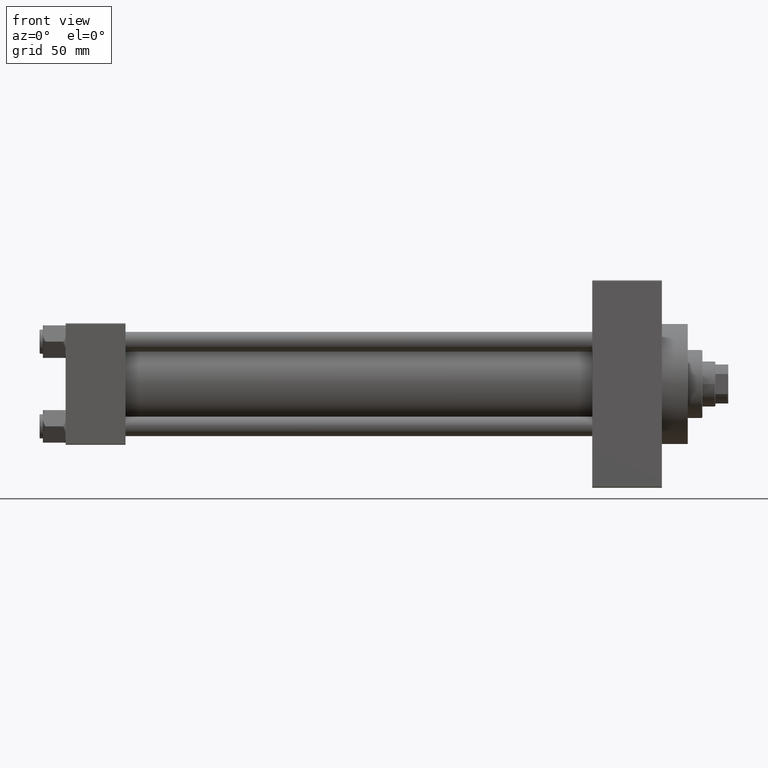
[diagram: clean part render]
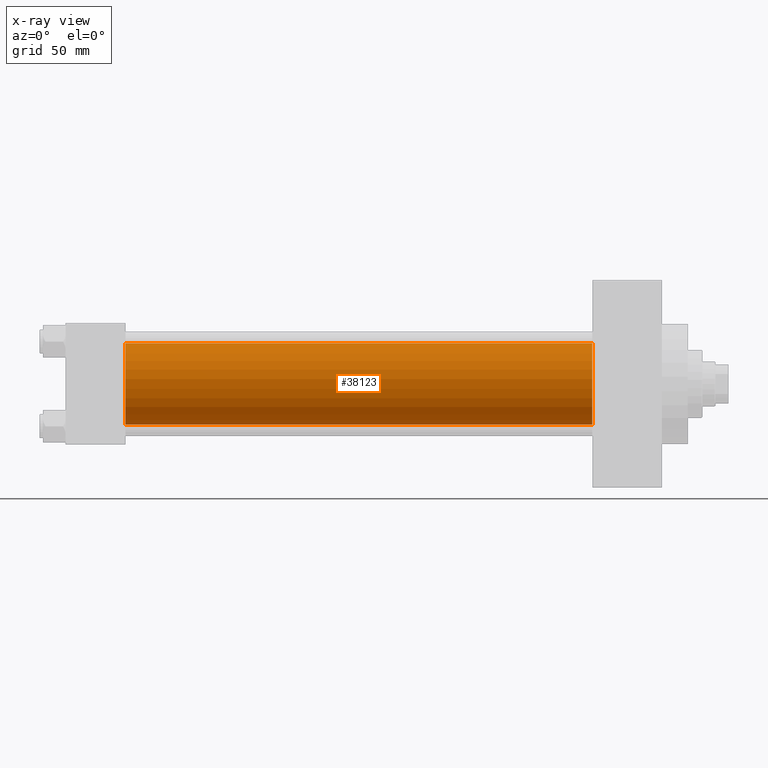
[diagram: x-ray — body ghosted, one internal face saturated and labeled with its STEP entity id]
A machine part, front view, then the same camera in x-ray: the body is ghosted and one INTERNAL B-rep face — a face not visible from any outside direction — is saturated and labeled: STEP entity #38123.
In plain terms, the highlighted cylindrical surface (partial cylindrical patch) has radius 25 mm, axis along (-1, -0, -0).
Its self-contained STEP definition (entity closure, byte-faithful):
#516 = EDGE_CURVE ( 'NONE', #31671, #13207, #44787, .T. ) ;
#1062 = EDGE_CURVE ( 'NONE', #6709, #31671, #37359, .T. ) ;
#1835 = DIRECTION ( 'NONE',  ( 0.000000000000000000, 0.000000000000000000, -1.000000000000000000 ) ) ;
#1949 = CARTESIAN_POINT ( 'NONE',  ( 324.9999999999999432, 4.595317839031724996E-16, -25.00000000000000000 ) ) ;
#6325 = AXIS2_PLACEMENT_3D ( 'NONE', #27177, #30664, #12189 ) ;
#6709 = VERTEX_POINT ( 'NONE', #8147 ) ;
#8147 = CARTESIAN_POINT ( 'NONE',  ( 324.9999999999999432, -2.602085213965210642E-15, 25.00000000000000000 ) ) ;
#9304 = EDGE_CURVE ( 'NONE', #22957, #13207, #43888, .T. ) ;
#12189 = DIRECTION ( 'NONE',  ( 0.000000000000000000, 0.000000000000000000, 1.000000000000000000 ) ) ;
#13143 = VECTOR ( 'NONE', #15250, 1000.000000000000000 ) ;
#13207 = VERTEX_POINT ( 'NONE', #21697 ) ;
#14875 = DIRECTION ( 'NONE',  ( 1.000000000000000000, 0.000000000000000000, 0.000000000000000000 ) ) ;
#15250 = DIRECTION ( 'NONE',  ( -1.000000000000000000, -0.000000000000000000, -0.000000000000000000 ) ) ;
#15792 = ORIENTED_EDGE ( 'NONE', *, *, #9304, .F. ) ;
#16238 = CARTESIAN_POINT ( 'NONE',  ( 324.9999999999999432, -2.602085213965210642E-15, 25.00000000000000000 ) ) ;
#16469 = ORIENTED_EDGE ( 'NONE', *, *, #24455, .F. ) ;
#17165 = DIRECTION ( 'NONE',  ( -1.000000000000000000, -0.000000000000000000, -0.000000000000000000 ) ) ;
#17467 = AXIS2_PLACEMENT_3D ( 'NONE', #32504, #28757, #1835 ) ;
#19936 = CYLINDRICAL_SURFACE ( 'NONE', #6325, 25.00000000000000000 ) ;
#21697 = CARTESIAN_POINT ( 'NONE',  ( 37.00000000000000000, 4.595317839031724996E-16, -25.00000000000000000 ) ) ;
#21845 = CARTESIAN_POINT ( 'NONE',  ( 37.00000000000000000, -2.602085213965210642E-15, 25.00000000000000000 ) ) ;
#22957 = VERTEX_POINT ( 'NONE', #21845 ) ;
#24455 = EDGE_CURVE ( 'NONE', #6709, #22957, #42652, .T. ) ;
#24962 = EDGE_LOOP ( 'NONE', ( #39034, #30756, #15792, #16469 ) ) ;
#27177 = CARTESIAN_POINT ( 'NONE',  ( 324.9999999999999432, -2.602085213965210642E-15, 0.000000000000000000 ) ) ;
#28757 = DIRECTION ( 'NONE',  ( 1.000000000000000000, 0.000000000000000000, 0.000000000000000000 ) ) ;
#30664 = DIRECTION ( 'NONE',  ( -1.000000000000000000, -0.000000000000000000, -0.000000000000000000 ) ) ;
#30756 = ORIENTED_EDGE ( 'NONE', *, *, #516, .T. ) ;
#31671 = VERTEX_POINT ( 'NONE', #39259 ) ;
#32504 = CARTESIAN_POINT ( 'NONE',  ( 324.9999999999999432, -2.602085213965210642E-15, 0.000000000000000000 ) ) ;
#33345 = CARTESIAN_POINT ( 'NONE',  ( 37.00000000000000000, -2.602085213965210642E-15, 0.000000000000000000 ) ) ;
#34900 = FACE_OUTER_BOUND ( 'NONE', #24962, .T. ) ;
#35804 = VECTOR ( 'NONE', #17165, 1000.000000000000000 ) ;
#37359 = CIRCLE ( 'NONE', #17467, 25.00000000000000000 ) ;
#38123 = ADVANCED_FACE ( 'NONE', ( #34900 ), #19936, .F. ) ;
#39034 = ORIENTED_EDGE ( 'NONE', *, *, #1062, .T. ) ;
#39259 = CARTESIAN_POINT ( 'NONE',  ( 324.9999999999999432, 4.595317839031724996E-16, -25.00000000000000000 ) ) ;
#42652 = LINE ( 'NONE', #16238, #13143 ) ;
#43888 = CIRCLE ( 'NONE', #47878, 25.00000000000000000 ) ;
#44787 = LINE ( 'NONE', #1949, #35804 ) ;
#47878 = AXIS2_PLACEMENT_3D ( 'NONE', #33345, #14875, #48285 ) ;
#48285 = DIRECTION ( 'NONE',  ( 0.000000000000000000, 0.000000000000000000, -1.000000000000000000 ) ) ;